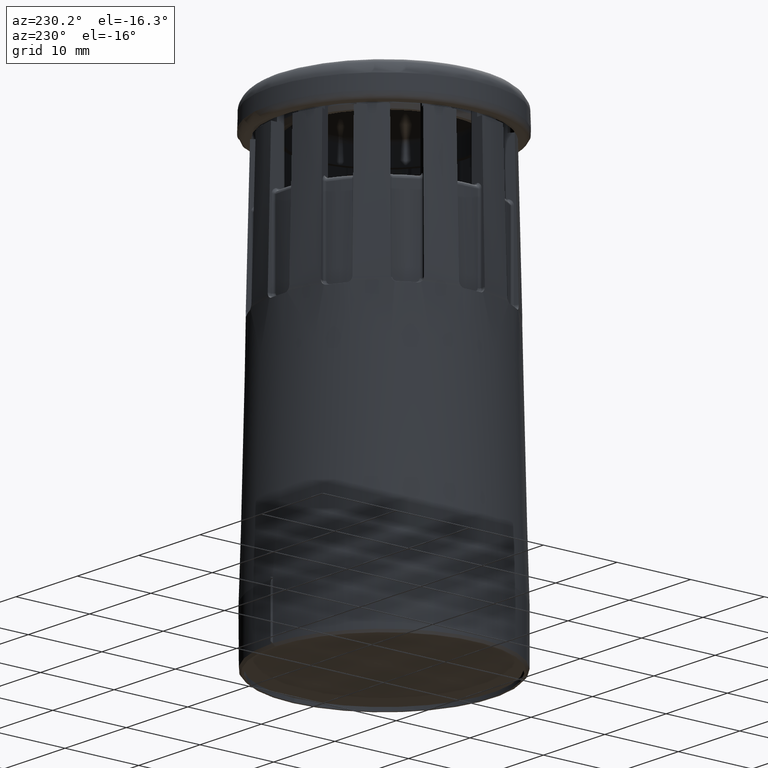
[diagram: clean part render]
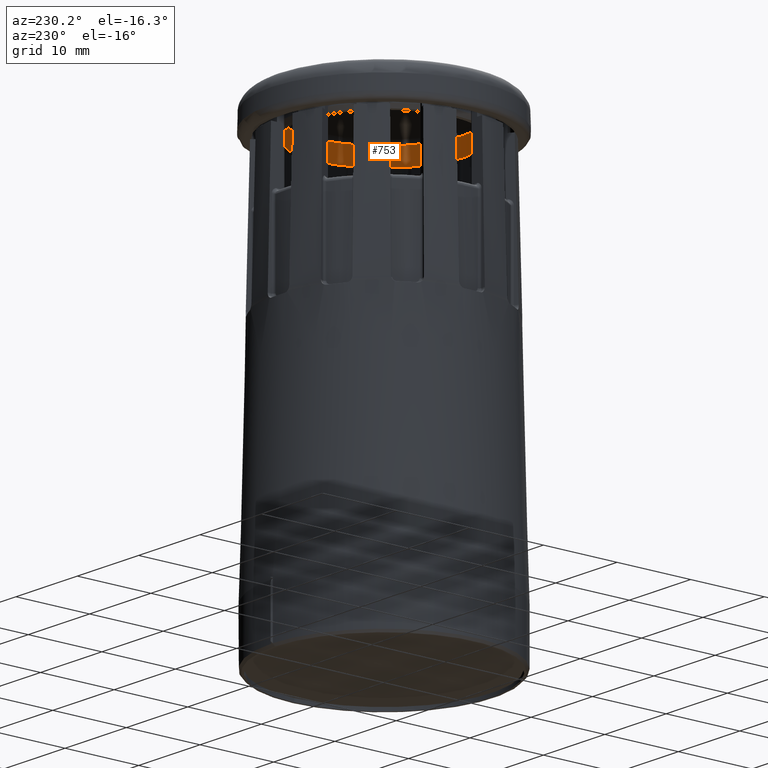
[diagram: same view with one face highlighted and labeled with its STEP entity id]
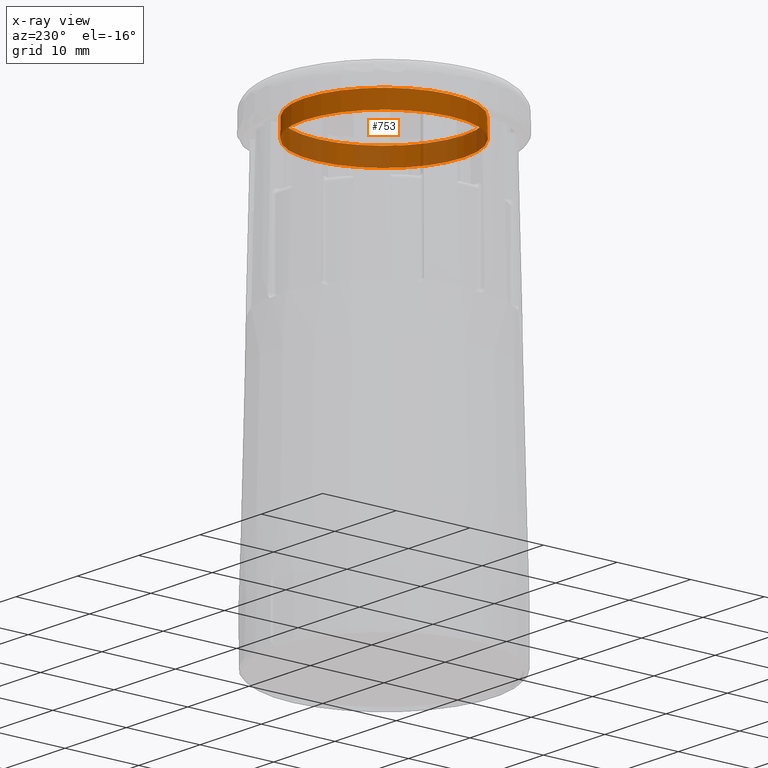
[diagram: x-ray of the same camera — body ghosted, the highlighted face saturated]
A machine part, auxiliary view. The second image highlights one B-rep face of the part: STEP entity #753.
The next image is the same camera in x-ray: the body ghosted, the highlighted face saturated — about 31% of this face is hidden behind the body in this view.
In plain terms, the highlighted conical surface has half-angle 1 deg.
Its self-contained STEP definition (entity closure, byte-faithful):
#106=FACE_BOUND('',#1673,.T.);
#107=FACE_BOUND('',#1674,.T.);
#213=CONICAL_SURFACE('',#7748,10.8,1.);
#753=ADVANCED_FACE('',(#106,#107),#213,.F.);
#1673=EDGE_LOOP('',(#4383));
#1674=EDGE_LOOP('',(#4384));
#1998=CIRCLE('',#7746,10.8102902592244);
#1999=CIRCLE('',#7747,10.8523651947847);
#4383=ORIENTED_EDGE('',*,*,#6452,.T.);
#4384=ORIENTED_EDGE('',*,*,#6453,.T.);
#5362=VERTEX_POINT('',#18125);
#5363=VERTEX_POINT('',#18127);
#6452=EDGE_CURVE('',#5362,#5362,#1998,.T.);
#6453=EDGE_CURVE('',#5363,#5363,#1999,.T.);
#7746=AXIS2_PLACEMENT_3D('',#18124,#9278,#9279);
#7747=AXIS2_PLACEMENT_3D('',#18126,#9280,#9281);
#7748=AXIS2_PLACEMENT_3D('',#18128,#9282,#9283);
#9278=DIRECTION('',(0.,0.,1.));
#9279=DIRECTION('',(1.,0.,0.));
#9280=DIRECTION('',(0.,0.,-1.));
#9281=DIRECTION('',(-1.,0.,0.));
#9282=DIRECTION('',(0.,0.,-1.));
#9283=DIRECTION('',(1.,0.,-1.96464426368457E-15));
#18124=CARTESIAN_POINT('',(0.,-1.2490009027033E-13,46.4104714438623));
#18125=CARTESIAN_POINT('',(10.8102902592244,-1.2490009027033E-13,46.4104714438623));
#18126=CARTESIAN_POINT('',(0.,-1.2490009027033E-13,44.));
#18127=CARTESIAN_POINT('',(-10.8523651947847,-1.2490009027033E-13,44.));
#18128=CARTESIAN_POINT('',(0.,-1.2490009027033E-13,47.));